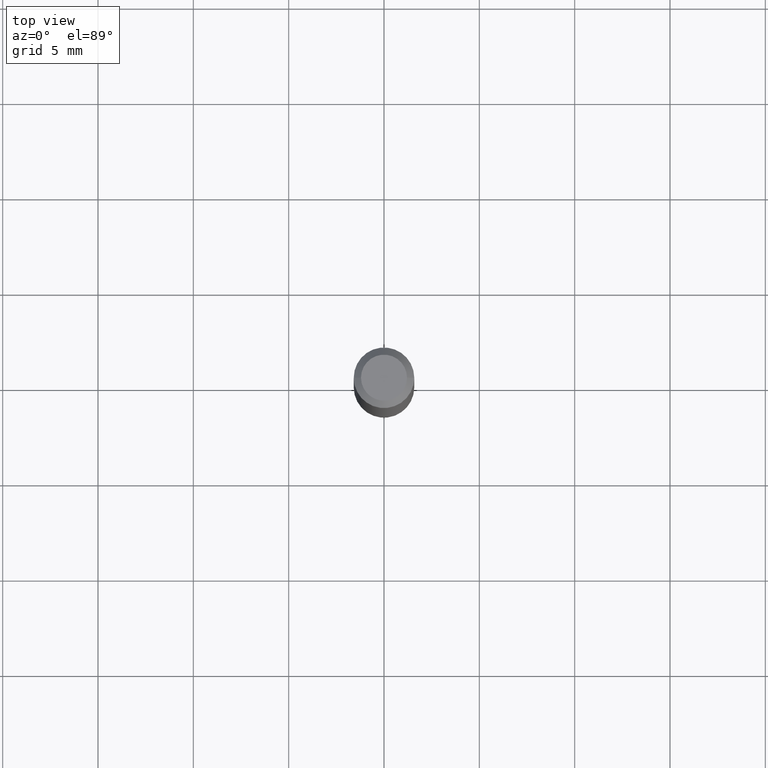
[diagram: clean part render]
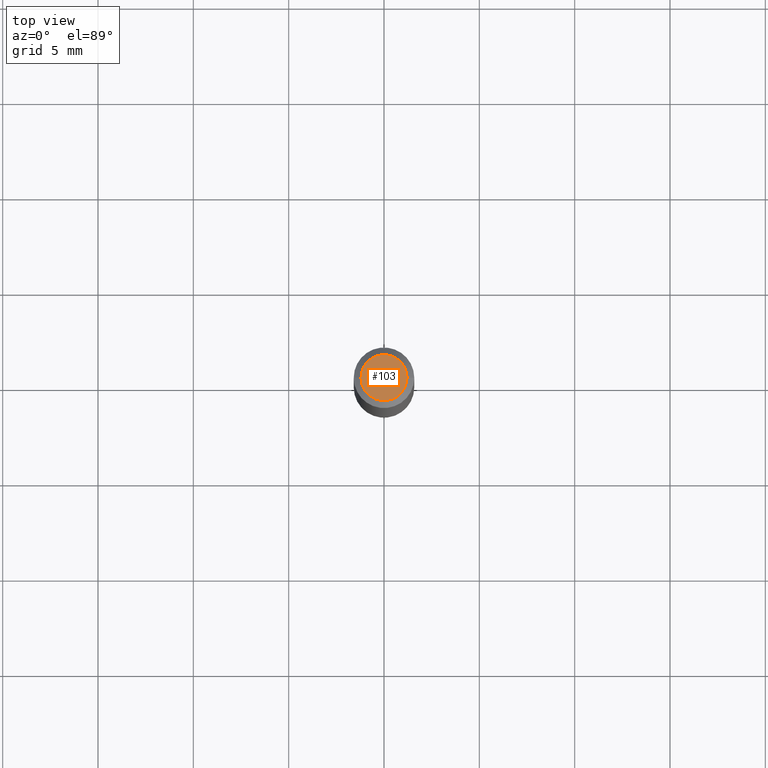
[diagram: same view with one face highlighted and labeled with its STEP entity id]
A machine part, top view. The second image highlights one B-rep face of the part: STEP entity #103.
In plain terms, the highlighted planar face has unit normal (0, -0, -1).
Its self-contained STEP definition (entity closure, byte-faithful):
#2 = CARTESIAN_POINT ( 'NONE',  ( -6.680649051745406845E-45, 9.538196290434862081E-31, 2.731847993664263218E-16 ) ) ;
#38 = DIRECTION ( 'NONE',  ( -1.000000000000000000, 6.982962677686265922E-15, -4.876176775795935793E-29 ) ) ;
#69 = ORIENTED_EDGE ( 'NONE', *, *, #110, .T. ) ;
#91 = CARTESIAN_POINT ( 'NONE',  ( 0.04750000000000000749, -4.035134999187568762E-16, 2.731847993664288856E-16 ) ) ;
#103 = ADVANCED_FACE ( 'NONE', ( #399 ), #433, .F. ) ;
#110 = EDGE_CURVE ( 'NONE', #457, #405, #497, .T. ) ;
#137 = AXIS2_PLACEMENT_3D ( 'NONE', #205, #164, #474 ) ;
#164 = DIRECTION ( 'NONE',  ( -2.445468806185136597E-29, 3.491481338843145583E-15, 1.000000000000000000 ) ) ;
#170 = DIRECTION ( 'NONE',  ( -2.445468806185136597E-29, 3.491481338843145583E-15, 1.000000000000000000 ) ) ;
#196 = CIRCLE ( 'NONE', #320, 0.04750000000000000749 ) ;
#205 = CARTESIAN_POINT ( 'NONE',  ( -6.680649051745406845E-45, 9.538196290434862081E-31, 2.731847993664263218E-16 ) ) ;
#213 = AXIS2_PLACEMENT_3D ( 'NONE', #258, #289, #38 ) ;
#258 = CARTESIAN_POINT ( 'NONE',  ( 3.316907271900976589E-16, 0.04750000000000000749, -2.925296391183627249E-17 ) ) ;
#289 = DIRECTION ( 'NONE',  ( 2.438088387897960049E-29, -3.491481338843145188E-15, -1.000000000000000000 ) ) ;
#320 = AXIS2_PLACEMENT_3D ( 'NONE', #2, #170, #330 ) ;
#330 = DIRECTION ( 'NONE',  ( 1.000000000000000000, -6.982962677686266711E-15, 4.852736867747365086E-29 ) ) ;
#364 = CARTESIAN_POINT ( 'NONE',  ( -0.04750000000000000749, 3.578768372314221353E-16, 2.731847993664239060E-16 ) ) ;
#399 = FACE_OUTER_BOUND ( 'NONE', #437, .T. ) ;
#405 = VERTEX_POINT ( 'NONE', #91 ) ;
#433 = PLANE ( 'NONE',  #213 ) ;
#437 = EDGE_LOOP ( 'NONE', ( #69, #448 ) ) ;
#448 = ORIENTED_EDGE ( 'NONE', *, *, #463, .T. ) ;
#457 = VERTEX_POINT ( 'NONE', #364 ) ;
#463 = EDGE_CURVE ( 'NONE', #405, #457, #196, .T. ) ;
#474 = DIRECTION ( 'NONE',  ( 1.000000000000000000, -6.982962677686266711E-15, 4.852736867747365086E-29 ) ) ;
#497 = CIRCLE ( 'NONE', #137, 0.04750000000000000749 ) ;